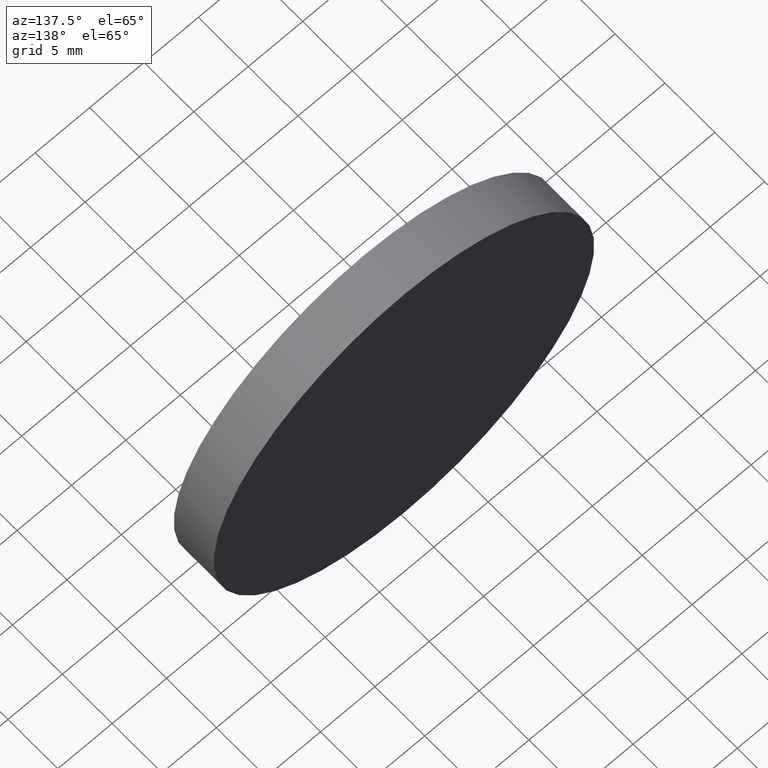
[diagram: clean part render]
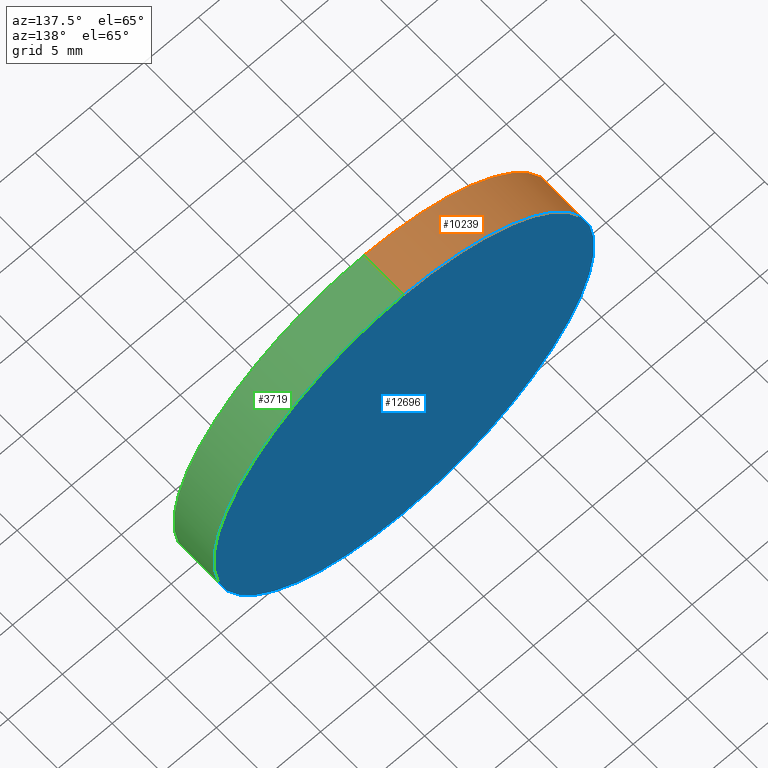
[diagram: same view with three faces highlighted in distinct colors, each labeled with its STEP entity id]
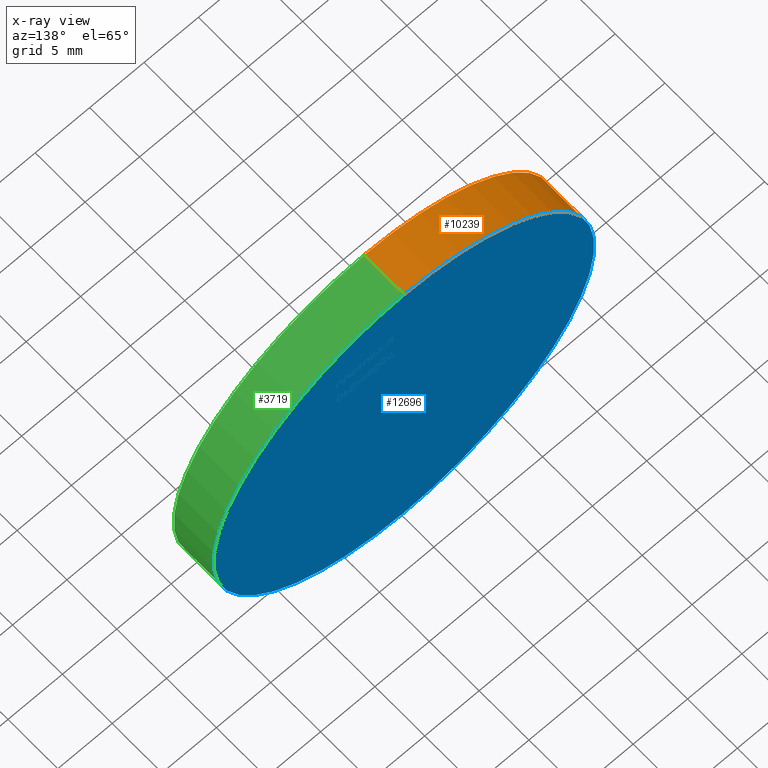
[diagram: x-ray of the same camera — body ghosted, the three highlighted faces saturated]
A machine part, auxiliary view with three faces highlighted in distinct colors.
The next image is the same camera in x-ray (body ghosted, the three faces saturated) — at least one of them is partly hidden behind the body in this view.
Their STEP definitions:

[orange] entity #10239 — the highlighted cylindrical surface (partial cylindrical patch) has radius 17.5 mm, axis along (-0, -1, -0).
#143 = CARTESIAN_POINT ( 'NONE',  ( 0.000000000000000000, 2.000000000000000000, 0.000000000000000000 ) ) ;
#185 = LINE ( 'NONE', #4950, #5710 ) ;
#1107 = ORIENTED_EDGE ( 'NONE', *, *, #8915, .F. ) ;
#2003 = CARTESIAN_POINT ( 'NONE',  ( 2.143131898507868643E-15, 2.000000000000000000, 17.50000000000000355 ) ) ;
#3000 = DIRECTION ( 'NONE',  ( 0.000000000000000000, 1.000000000000000000, 0.000000000000000000 ) ) ;
#3494 = EDGE_CURVE ( 'NONE', #5523, #12214, #12161, .T. ) ;
#3589 = EDGE_LOOP ( 'NONE', ( #1107, #4542, #6118, #10225 ) ) ;
#3808 = DIRECTION ( 'NONE',  ( -0.000000000000000000, -1.000000000000000000, -0.000000000000000000 ) ) ;
#3866 = AXIS2_PLACEMENT_3D ( 'NONE', #5785, #5877, #13324 ) ;
#3911 = AXIS2_PLACEMENT_3D ( 'NONE', #143, #4333, #8784 ) ;
#4333 = DIRECTION ( 'NONE',  ( -0.000000000000000000, -1.000000000000000000, -0.000000000000000000 ) ) ;
#4542 = ORIENTED_EDGE ( 'NONE', *, *, #3494, .F. ) ;
#4880 = CARTESIAN_POINT ( 'NONE',  ( 0.000000000000000000, -2.000000000000000000, 0.000000000000000000 ) ) ;
#4950 = CARTESIAN_POINT ( 'NONE',  ( 2.143131898507868643E-15, 2.000000000000000000, 17.50000000000000355 ) ) ;
#5523 = VERTEX_POINT ( 'NONE', #11816 ) ;
#5710 = VECTOR ( 'NONE', #3808, 1000.000000000000000 ) ;
#5785 = CARTESIAN_POINT ( 'NONE',  ( 0.000000000000000000, 2.000000000000000000, 0.000000000000000000 ) ) ;
#5877 = DIRECTION ( 'NONE',  ( 0.000000000000000000, 1.000000000000000000, 0.000000000000000000 ) ) ;
#5977 = DIRECTION ( 'NONE',  ( 0.000000000000000000, 0.000000000000000000, 1.000000000000000000 ) ) ;
#6118 = ORIENTED_EDGE ( 'NONE', *, *, #10795, .T. ) ;
#6393 = LINE ( 'NONE', #6779, #9877 ) ;
#6779 = CARTESIAN_POINT ( 'NONE',  ( 0.000000000000000000, 2.000000000000000000, -17.50000000000000355 ) ) ;
#7858 = VERTEX_POINT ( 'NONE', #8734 ) ;
#8546 = CIRCLE ( 'NONE', #11784, 17.50000000000000355 ) ;
#8722 = DIRECTION ( 'NONE',  ( -0.000000000000000000, -1.000000000000000000, -0.000000000000000000 ) ) ;
#8734 = CARTESIAN_POINT ( 'NONE',  ( 2.143131898507868643E-15, -2.000000000000000000, 17.50000000000000355 ) ) ;
#8784 = DIRECTION ( 'NONE',  ( 0.000000000000000000, 0.000000000000000000, -1.000000000000000000 ) ) ;
#8915 = EDGE_CURVE ( 'NONE', #12214, #7858, #185, .T. ) ;
#9038 = CYLINDRICAL_SURFACE ( 'NONE', #3911, 17.50000000000000355 ) ;
#9363 = EDGE_CURVE ( 'NONE', #13129, #7858, #8546, .T. ) ;
#9877 = VECTOR ( 'NONE', #8722, 1000.000000000000000 ) ;
#10219 = FACE_OUTER_BOUND ( 'NONE', #3589, .T. ) ;
#10225 = ORIENTED_EDGE ( 'NONE', *, *, #9363, .T. ) ;
#10239 = ADVANCED_FACE ( 'NONE', ( #10219 ), #9038, .T. ) ;
#10795 = EDGE_CURVE ( 'NONE', #5523, #13129, #6393, .T. ) ;
#11784 = AXIS2_PLACEMENT_3D ( 'NONE', #4880, #3000, #5977 ) ;
#11816 = CARTESIAN_POINT ( 'NONE',  ( 0.000000000000000000, 2.000000000000000000, -17.50000000000000355 ) ) ;
#12161 = CIRCLE ( 'NONE', #3866, 17.50000000000000355 ) ;
#12214 = VERTEX_POINT ( 'NONE', #2003 ) ;
#12702 = CARTESIAN_POINT ( 'NONE',  ( 0.000000000000000000, -2.000000000000000000, -17.50000000000000355 ) ) ;
#13129 = VERTEX_POINT ( 'NONE', #12702 ) ;
#13324 = DIRECTION ( 'NONE',  ( 0.000000000000000000, 0.000000000000000000, 1.000000000000000000 ) ) ;

[blue] entity #12696 — the highlighted planar face has unit normal (0, 1, 0).
#20 = CIRCLE ( 'NONE', #2408, 17.50000000000000355 ) ;
#404 = DIRECTION ( 'NONE',  ( 0.000000000000000000, 0.000000000000000000, 1.000000000000000000 ) ) ;
#1420 = CARTESIAN_POINT ( 'NONE',  ( 0.000000000000000000, 2.000000000000000000, 0.000000000000000000 ) ) ;
#2003 = CARTESIAN_POINT ( 'NONE',  ( 2.143131898507868643E-15, 2.000000000000000000, 17.50000000000000355 ) ) ;
#2408 = AXIS2_PLACEMENT_3D ( 'NONE', #1420, #2499, #404 ) ;
#2499 = DIRECTION ( 'NONE',  ( 0.000000000000000000, 1.000000000000000000, 0.000000000000000000 ) ) ;
#3046 = ORIENTED_EDGE ( 'NONE', *, *, #13303, .T. ) ;
#3254 = EDGE_LOOP ( 'NONE', ( #13447, #3046 ) ) ;
#3494 = EDGE_CURVE ( 'NONE', #5523, #12214, #12161, .T. ) ;
#3866 = AXIS2_PLACEMENT_3D ( 'NONE', #5785, #5877, #13324 ) ;
#4212 = PLANE ( 'NONE',  #11962 ) ;
#5354 = CARTESIAN_POINT ( 'NONE',  ( 0.000000000000000000, 2.000000000000000000, 0.000000000000000000 ) ) ;
#5523 = VERTEX_POINT ( 'NONE', #11816 ) ;
#5785 = CARTESIAN_POINT ( 'NONE',  ( 0.000000000000000000, 2.000000000000000000, 0.000000000000000000 ) ) ;
#5877 = DIRECTION ( 'NONE',  ( 0.000000000000000000, 1.000000000000000000, 0.000000000000000000 ) ) ;
#7857 = FACE_OUTER_BOUND ( 'NONE', #3254, .T. ) ;
#8545 = DIRECTION ( 'NONE',  ( 0.000000000000000000, -0.000000000000000000, 1.000000000000000000 ) ) ;
#11585 = DIRECTION ( 'NONE',  ( 0.000000000000000000, 1.000000000000000000, 0.000000000000000000 ) ) ;
#11816 = CARTESIAN_POINT ( 'NONE',  ( 0.000000000000000000, 2.000000000000000000, -17.50000000000000355 ) ) ;
#11962 = AXIS2_PLACEMENT_3D ( 'NONE', #5354, #11585, #8545 ) ;
#12161 = CIRCLE ( 'NONE', #3866, 17.50000000000000355 ) ;
#12214 = VERTEX_POINT ( 'NONE', #2003 ) ;
#12696 = ADVANCED_FACE ( 'NONE', ( #7857 ), #4212, .T. ) ;
#13303 = EDGE_CURVE ( 'NONE', #12214, #5523, #20, .T. ) ;
#13324 = DIRECTION ( 'NONE',  ( 0.000000000000000000, 0.000000000000000000, 1.000000000000000000 ) ) ;
#13447 = ORIENTED_EDGE ( 'NONE', *, *, #3494, .T. ) ;

[green] entity #3719 — the highlighted cylindrical surface (partial cylindrical patch) has radius 17.5 mm, axis along (-0, -1, -0).
#20 = CIRCLE ( 'NONE', #2408, 17.50000000000000355 ) ;
#158 = CYLINDRICAL_SURFACE ( 'NONE', #3590, 17.50000000000000355 ) ;
#185 = LINE ( 'NONE', #4950, #5710 ) ;
#404 = DIRECTION ( 'NONE',  ( 0.000000000000000000, 0.000000000000000000, 1.000000000000000000 ) ) ;
#726 = DIRECTION ( 'NONE',  ( 0.000000000000000000, 1.000000000000000000, 0.000000000000000000 ) ) ;
#1348 = ORIENTED_EDGE ( 'NONE', *, *, #13388, .T. ) ;
#1420 = CARTESIAN_POINT ( 'NONE',  ( 0.000000000000000000, 2.000000000000000000, 0.000000000000000000 ) ) ;
#1963 = ORIENTED_EDGE ( 'NONE', *, *, #10795, .F. ) ;
#2003 = CARTESIAN_POINT ( 'NONE',  ( 2.143131898507868643E-15, 2.000000000000000000, 17.50000000000000355 ) ) ;
#2401 = EDGE_LOOP ( 'NONE', ( #6682, #5585, #1348, #1963 ) ) ;
#2408 = AXIS2_PLACEMENT_3D ( 'NONE', #1420, #2499, #404 ) ;
#2499 = DIRECTION ( 'NONE',  ( 0.000000000000000000, 1.000000000000000000, 0.000000000000000000 ) ) ;
#3165 = CIRCLE ( 'NONE', #3819, 17.50000000000000355 ) ;
#3590 = AXIS2_PLACEMENT_3D ( 'NONE', #11582, #12782, #7545 ) ;
#3719 = ADVANCED_FACE ( 'NONE', ( #5845 ), #158, .T. ) ;
#3733 = CARTESIAN_POINT ( 'NONE',  ( 0.000000000000000000, -2.000000000000000000, 0.000000000000000000 ) ) ;
#3808 = DIRECTION ( 'NONE',  ( -0.000000000000000000, -1.000000000000000000, -0.000000000000000000 ) ) ;
#3819 = AXIS2_PLACEMENT_3D ( 'NONE', #3733, #726, #5965 ) ;
#4950 = CARTESIAN_POINT ( 'NONE',  ( 2.143131898507868643E-15, 2.000000000000000000, 17.50000000000000355 ) ) ;
#5523 = VERTEX_POINT ( 'NONE', #11816 ) ;
#5585 = ORIENTED_EDGE ( 'NONE', *, *, #8915, .T. ) ;
#5710 = VECTOR ( 'NONE', #3808, 1000.000000000000000 ) ;
#5845 = FACE_OUTER_BOUND ( 'NONE', #2401, .T. ) ;
#5965 = DIRECTION ( 'NONE',  ( 0.000000000000000000, 0.000000000000000000, 1.000000000000000000 ) ) ;
#6393 = LINE ( 'NONE', #6779, #9877 ) ;
#6682 = ORIENTED_EDGE ( 'NONE', *, *, #13303, .F. ) ;
#6779 = CARTESIAN_POINT ( 'NONE',  ( 0.000000000000000000, 2.000000000000000000, -17.50000000000000355 ) ) ;
#7545 = DIRECTION ( 'NONE',  ( 0.000000000000000000, 0.000000000000000000, -1.000000000000000000 ) ) ;
#7858 = VERTEX_POINT ( 'NONE', #8734 ) ;
#8722 = DIRECTION ( 'NONE',  ( -0.000000000000000000, -1.000000000000000000, -0.000000000000000000 ) ) ;
#8734 = CARTESIAN_POINT ( 'NONE',  ( 2.143131898507868643E-15, -2.000000000000000000, 17.50000000000000355 ) ) ;
#8915 = EDGE_CURVE ( 'NONE', #12214, #7858, #185, .T. ) ;
#9877 = VECTOR ( 'NONE', #8722, 1000.000000000000000 ) ;
#10795 = EDGE_CURVE ( 'NONE', #5523, #13129, #6393, .T. ) ;
#11582 = CARTESIAN_POINT ( 'NONE',  ( 0.000000000000000000, 2.000000000000000000, 0.000000000000000000 ) ) ;
#11816 = CARTESIAN_POINT ( 'NONE',  ( 0.000000000000000000, 2.000000000000000000, -17.50000000000000355 ) ) ;
#12214 = VERTEX_POINT ( 'NONE', #2003 ) ;
#12702 = CARTESIAN_POINT ( 'NONE',  ( 0.000000000000000000, -2.000000000000000000, -17.50000000000000355 ) ) ;
#12782 = DIRECTION ( 'NONE',  ( -0.000000000000000000, -1.000000000000000000, -0.000000000000000000 ) ) ;
#13129 = VERTEX_POINT ( 'NONE', #12702 ) ;
#13303 = EDGE_CURVE ( 'NONE', #12214, #5523, #20, .T. ) ;
#13388 = EDGE_CURVE ( 'NONE', #7858, #13129, #3165, .T. ) ;